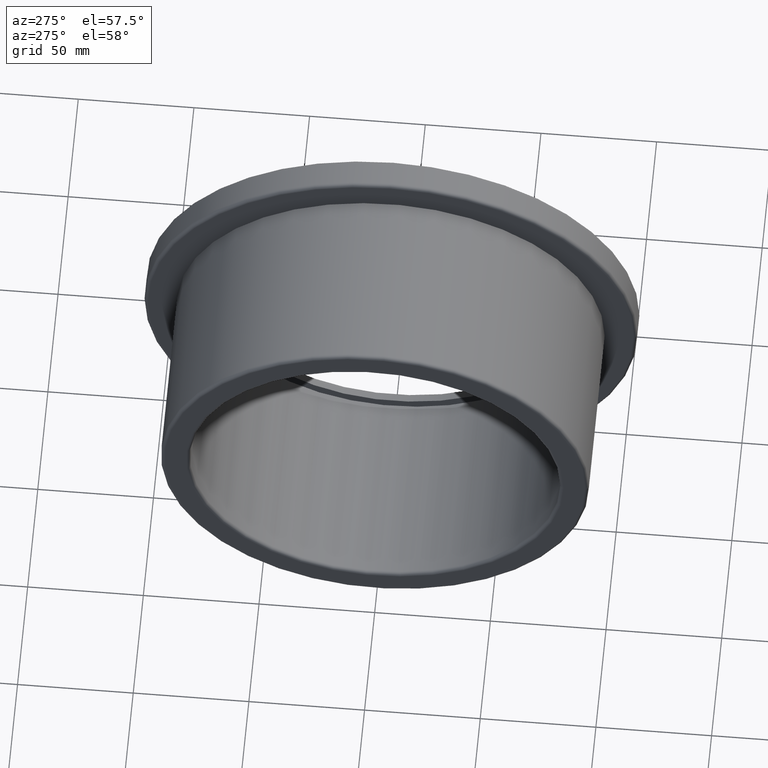
[diagram: clean part render]
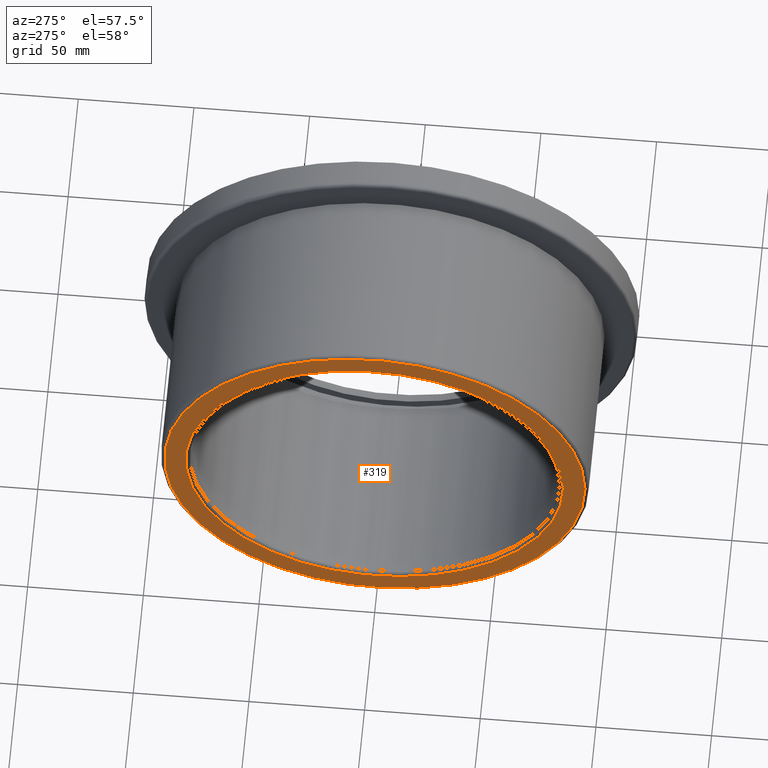
[diagram: same view with one face highlighted and labeled with its STEP entity id]
A machine part, auxiliary view. The second image highlights one B-rep face of the part: STEP entity #319.
In plain terms, the highlighted planar face has unit normal (-1, 0, 0).
Its self-contained STEP definition (entity closure, byte-faithful):
#39=PLANE('',#359);
#54=FACE_BOUND('',#120,.T.);
#80=FACE_OUTER_BOUND('',#119,.T.);
#119=EDGE_LOOP('',(#263));
#120=EDGE_LOOP('',(#264));
#156=CIRCLE('',#357,81.6);
#158=CIRCLE('',#360,90.9);
#183=VERTEX_POINT('',#1579);
#185=VERTEX_POINT('',#1584);
#214=EDGE_CURVE('',#183,#183,#156,.T.);
#216=EDGE_CURVE('',#185,#185,#158,.T.);
#263=ORIENTED_EDGE('',*,*,#216,.F.);
#264=ORIENTED_EDGE('',*,*,#214,.F.);
#319=ADVANCED_FACE('',(#80,#54),#39,.T.);
#357=AXIS2_PLACEMENT_3D('',#1580,#427,#428);
#359=AXIS2_PLACEMENT_3D('',#1583,#431,#432);
#360=AXIS2_PLACEMENT_3D('',#1585,#433,#434);
#427=DIRECTION('center_axis',(-1.,0.,0.));
#428=DIRECTION('ref_axis',(0.,1.,6.12323399573677E-17));
#431=DIRECTION('center_axis',(-1.,0.,0.));
#432=DIRECTION('ref_axis',(0.,0.,1.));
#433=DIRECTION('center_axis',(1.,0.,0.));
#434=DIRECTION('ref_axis',(0.,1.,6.12323399573676E-17));
#1579=CARTESIAN_POINT('',(0.,-81.6,4.9965589405212E-15));
#1580=CARTESIAN_POINT('Origin',(0.,0.,0.));
#1583=CARTESIAN_POINT('Origin',(0.,-80.,0.));
#1584=CARTESIAN_POINT('',(0.,-90.9,-1.66980591063742E-14));
#1585=CARTESIAN_POINT('Origin',(0.,0.,0.));